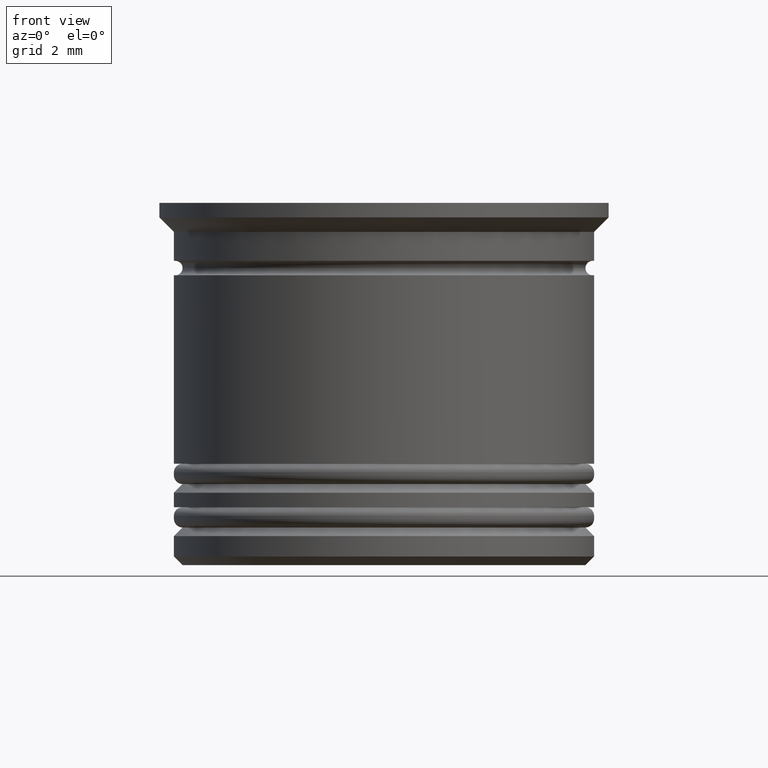
[diagram: clean part render]
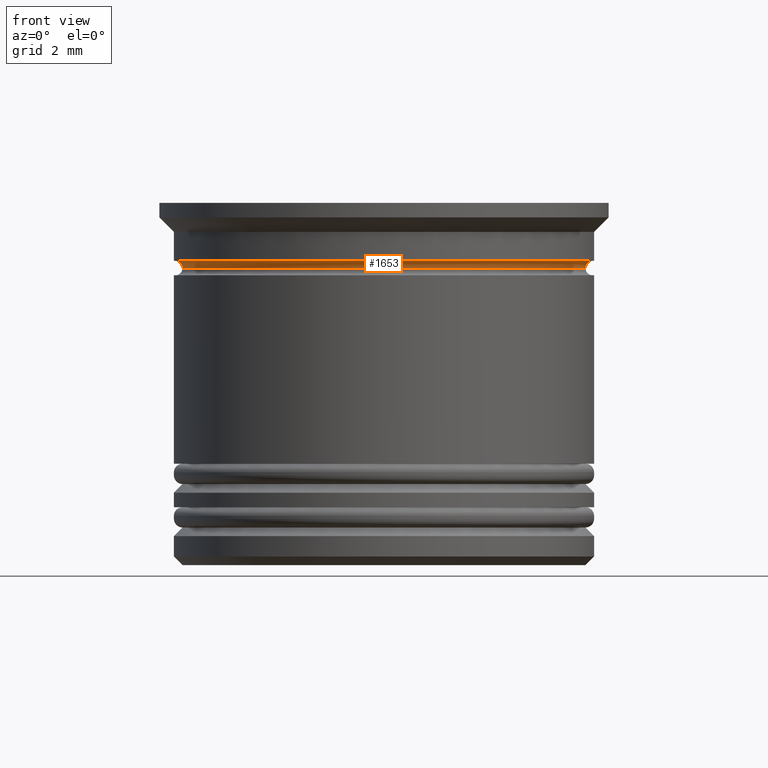
[diagram: same view with one face highlighted and labeled with its STEP entity id]
A machine part, front view. The second image highlights one B-rep face of the part: STEP entity #1653.
In plain terms, the highlighted toroidal blend (fillet) surface has major radius 7.2 mm and minor (blend) radius 0.25 mm.
Its self-contained STEP definition (entity closure, byte-faithful):
#4 = DIRECTION ( 'NONE',  ( 0.000000000000000000, 0.000000000000000000, -1.000000000000000000 ) ) ;
#36 = CARTESIAN_POINT ( 'NONE',  ( 7.200000000000000178, 0.000000000000000000, -2.000000000000000000 ) ) ;
#241 = CIRCLE ( 'NONE', #1751, 7.200000000000000178 ) ;
#255 = DIRECTION ( 'NONE',  ( 1.224646799147353207E-16, 1.000000000000000000, 0.000000000000000000 ) ) ;
#276 = CIRCLE ( 'NONE', #1082, 6.949999999999999289 ) ;
#331 = CARTESIAN_POINT ( 'NONE',  ( -6.949999999999999289, 8.511295254074103446E-16, -2.250000000000000000 ) ) ;
#456 = CARTESIAN_POINT ( 'NONE',  ( 7.200000000000000178, 0.000000000000000000, -2.250000000000000000 ) ) ;
#491 = EDGE_CURVE ( 'NONE', #1958, #1930, #1138, .T. ) ;
#541 = EDGE_LOOP ( 'NONE', ( #1515, #943, #1309, #1761 ) ) ;
#562 = CARTESIAN_POINT ( 'NONE',  ( -7.200000000000000178, 8.817456953860942303E-16, -2.250000000000000000 ) ) ;
#603 = AXIS2_PLACEMENT_3D ( 'NONE', #948, #1875, #1724 ) ;
#626 = CARTESIAN_POINT ( 'NONE',  ( -7.200000000000000178, 8.817456953860942303E-16, -2.000000000000000000 ) ) ;
#694 = AXIS2_PLACEMENT_3D ( 'NONE', #456, #921, #4 ) ;
#733 = DIRECTION ( 'NONE',  ( -1.000000000000000000, 1.224646799147349509E-16, 0.000000000000000000 ) ) ;
#794 = TOROIDAL_SURFACE ( 'NONE', #603, 7.200000000000000178, 0.2499999999999999445 ) ;
#803 = FACE_OUTER_BOUND ( 'NONE', #541, .T. ) ;
#921 = DIRECTION ( 'NONE',  ( 0.000000000000000000, -1.000000000000000000, 0.000000000000000000 ) ) ;
#943 = ORIENTED_EDGE ( 'NONE', *, *, #1572, .T. ) ;
#948 = CARTESIAN_POINT ( 'NONE',  ( 0.000000000000000000, 0.000000000000000000, -2.250000000000000000 ) ) ;
#981 = VERTEX_POINT ( 'NONE', #331 ) ;
#1018 = VERTEX_POINT ( 'NONE', #626 ) ;
#1065 = DIRECTION ( 'NONE',  ( -0.000000000000000000, -0.000000000000000000, 1.000000000000000000 ) ) ;
#1082 = AXIS2_PLACEMENT_3D ( 'NONE', #1675, #1065, #1215 ) ;
#1138 = CIRCLE ( 'NONE', #694, 0.2499999999999997780 ) ;
#1158 = DIRECTION ( 'NONE',  ( 1.000000000000000000, 0.000000000000000000, 0.000000000000000000 ) ) ;
#1215 = DIRECTION ( 'NONE',  ( 1.000000000000000000, 0.000000000000000000, 0.000000000000000000 ) ) ;
#1309 = ORIENTED_EDGE ( 'NONE', *, *, #491, .F. ) ;
#1430 = EDGE_CURVE ( 'NONE', #1018, #1958, #241, .T. ) ;
#1505 = AXIS2_PLACEMENT_3D ( 'NONE', #562, #255, #733 ) ;
#1515 = ORIENTED_EDGE ( 'NONE', *, *, #1728, .T. ) ;
#1530 = CIRCLE ( 'NONE', #1505, 0.2500000000000002220 ) ;
#1572 = EDGE_CURVE ( 'NONE', #981, #1930, #276, .T. ) ;
#1651 = DIRECTION ( 'NONE',  ( -0.000000000000000000, -0.000000000000000000, 1.000000000000000000 ) ) ;
#1653 = ADVANCED_FACE ( 'NONE', ( #803 ), #794, .F. ) ;
#1675 = CARTESIAN_POINT ( 'NONE',  ( 0.000000000000000000, 0.000000000000000000, -2.250000000000000000 ) ) ;
#1708 = CARTESIAN_POINT ( 'NONE',  ( 6.949999999999999289, 0.000000000000000000, -2.250000000000000000 ) ) ;
#1724 = DIRECTION ( 'NONE',  ( 1.000000000000000000, 0.000000000000000000, 0.000000000000000000 ) ) ;
#1728 = EDGE_CURVE ( 'NONE', #1018, #981, #1530, .T. ) ;
#1751 = AXIS2_PLACEMENT_3D ( 'NONE', #1773, #1651, #1158 ) ;
#1761 = ORIENTED_EDGE ( 'NONE', *, *, #1430, .F. ) ;
#1773 = CARTESIAN_POINT ( 'NONE',  ( 0.000000000000000000, 0.000000000000000000, -2.000000000000000000 ) ) ;
#1875 = DIRECTION ( 'NONE',  ( -0.000000000000000000, -0.000000000000000000, 1.000000000000000000 ) ) ;
#1930 = VERTEX_POINT ( 'NONE', #1708 ) ;
#1958 = VERTEX_POINT ( 'NONE', #36 ) ;